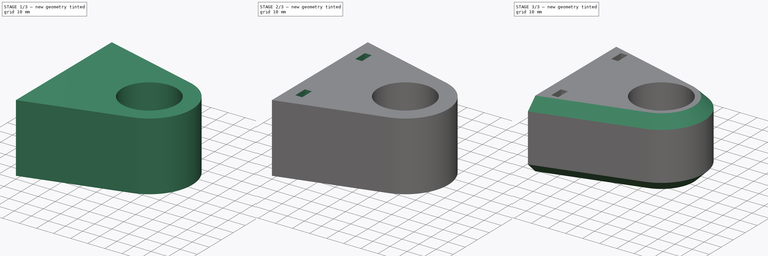
[diagram: build sequence overview — one tinted view per stage of 3, left to right]
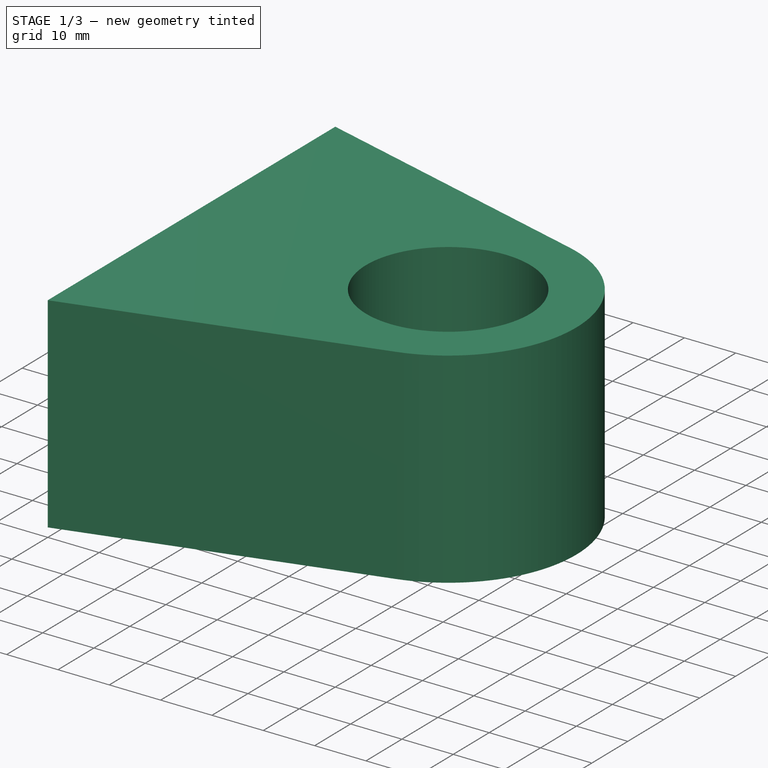
[diagram: stage 1 of 3 — iso view after this stage's code; geometry added in this stage tinted green]
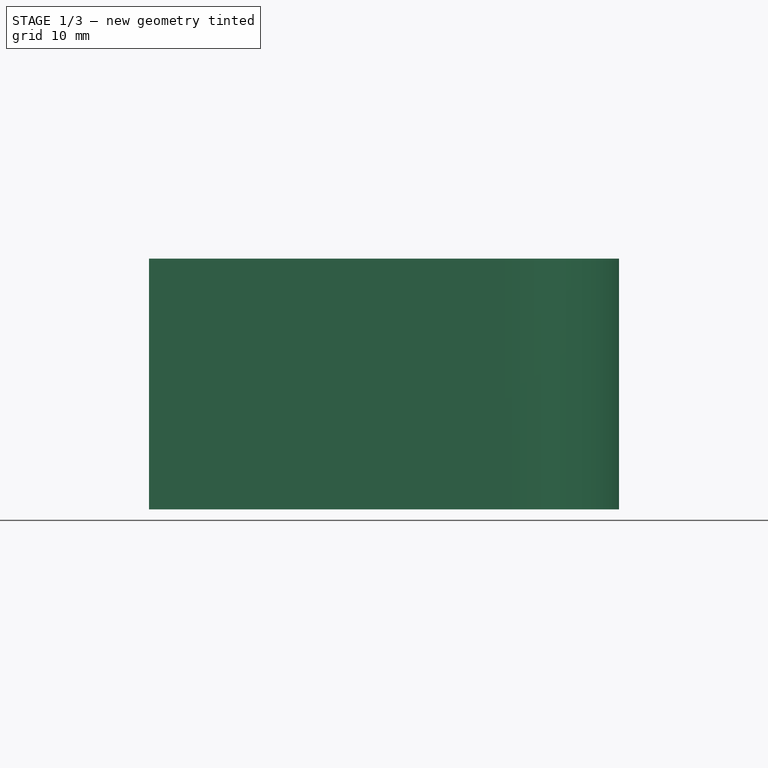
[diagram: stage 1 of 3 — front view after this stage's code; geometry added in this stage tinted green]
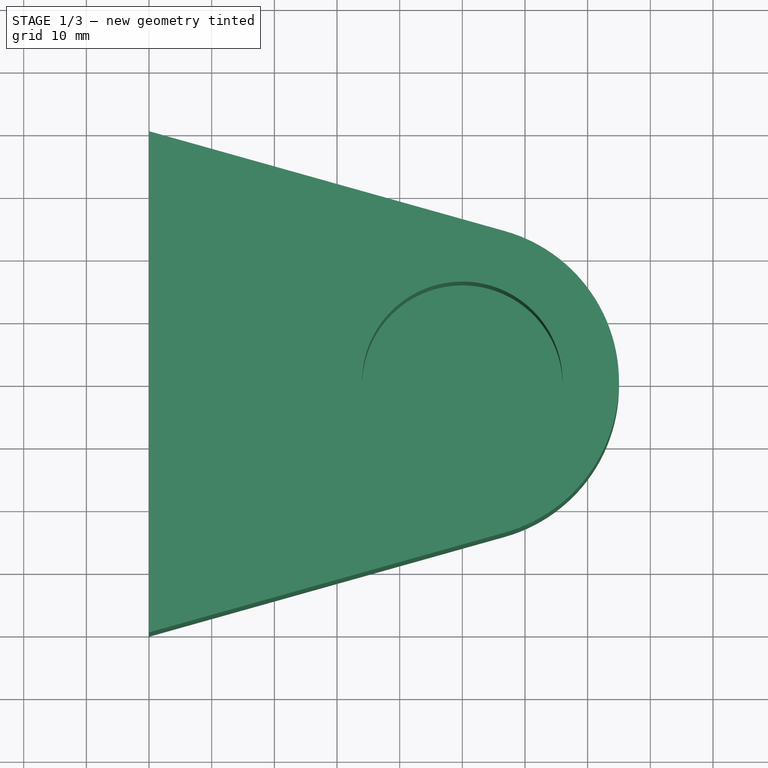
[diagram: stage 1 of 3 — top view after this stage's code; geometry added in this stage tinted green]
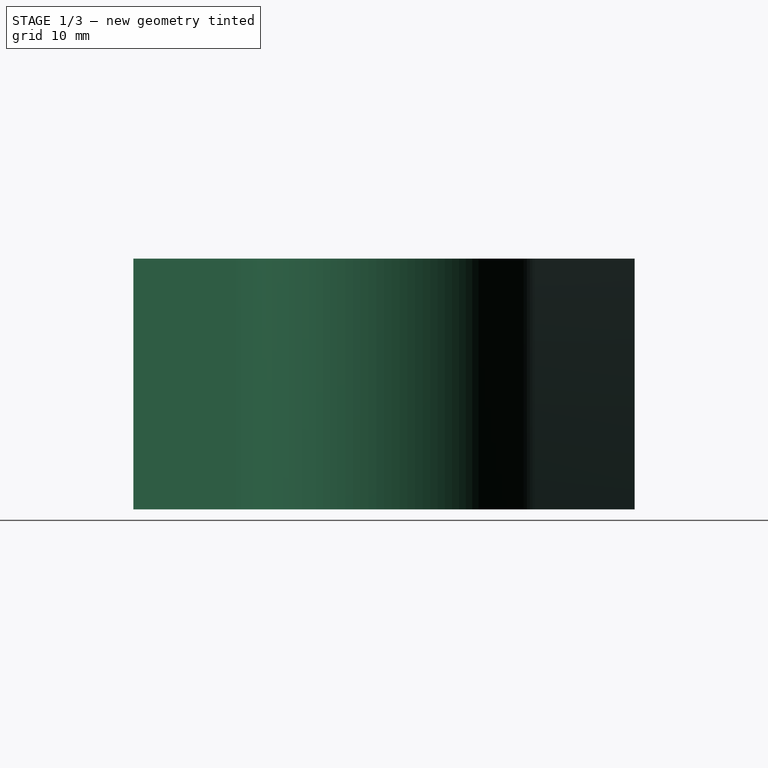
[diagram: stage 1 of 3 — right view after this stage's code; geometry added in this stage tinted green]
FCSTD DOCUMENT  (FreeCAD 0.19R23141 (Git))
Label: monitor_arm_wall_mount
License: All rights reserved
LicenseURL: http://en.wikipedia.org/wiki/All_rights_reserved
objects: Sketcher::SketchObject×4, PartDesign::Pocket×3, PartDesign::Pad×1, PartDesign::Chamfer×1, PartDesign::Body×1
note: 15 computed .brp shape members not serialized (recipe doc carries the construction recipe); baked Part::Feature solids carry a one-line shape summary decoded from their .brp

FEATURE [Sketcher::SketchObject] Sketch
  MapMode = 5
  Support = -> [XY_Plane]
  sketch-geometry (7):
    g0: Circle [constr] CenterX=0 CenterY=0 CenterZ=0 NormalX=0 NormalY=0 NormalZ=1 AngleXU=0 Radius=16
    g1: LineSegment StartX=-50 StartY=40 StartZ=0 EndX=6.75589 EndY=24.0699 EndZ=0
    g2: LineSegment StartX=6.75589 StartY=-24.0699 StartZ=0 EndX=-50 EndY=-40 EndZ=0
    g3: ArcOfCircle CenterX=0 CenterY=0 CenterZ=0 NormalX=0 NormalY=0 NormalZ=1 AngleXU=0 Radius=25 StartAngle=4.98603 EndAngle=7.58034
    g4: LineSegment [constr] StartX=-50 StartY=40 StartZ=0 EndX=-50 EndY=0 EndZ=0
    g5: LineSegment [constr] StartX=-50 StartY=0 StartZ=0 EndX=-50 EndY=-40 EndZ=0
    g6: LineSegment StartX=-50 StartY=40 StartZ=0 EndX=-50 EndY=-40 EndZ=0
  constraints (17):
    c: Coincident(g0,g-1)
    c: Tangent(g2,g3) = 1.5708
    c: Tangent(g1,g3) = 1.5708
    c: Coincident(g3,g0)
    c: Diameter(g0) = 32
    c: Diameter(g3) = 50
    c: DistanceX(g1,g0) = 50
    c: Coincident(g1,g4)
    c: PointOnObject(g4,g-1)
    c: Coincident(g4,g5)
    c: Coincident(g5,g2)
    c: Vertical(g5)
    c: Vertical(g4)
    c: Equal(g4,g5)
    c: DistanceY(g2,g1) = 80
    c: Coincident(g6,g1)
    c: Coincident(g6,g2)
FEATURE [PartDesign::Pad] Pad
  Direction = (1,1,1)
  Length = 40
  Length2 = 100
  Profile = -> Sketch
  Type = 0
FEATURE [Sketcher::SketchObject] Sketch001
  MapMode = 5
  Placement = pos=(0,0,40) rot=(0,0,1;0rad)
  Support = -> [Pad]
  sketch-geometry (1):
    g0: Circle CenterX=0 CenterY=0 CenterZ=0 NormalX=0 NormalY=0 NormalZ=1 AngleXU=0 Radius=16
  constraints (2):
    c: Coincident(g0,g-1)
    c: Diameter(g0) = 32
FEATURE [PartDesign::Pocket] Pocket
  BaseFeature = -> Pad
  Length = 35
  Length2 = 100
  Profile = -> Sketch001
  Type = 0
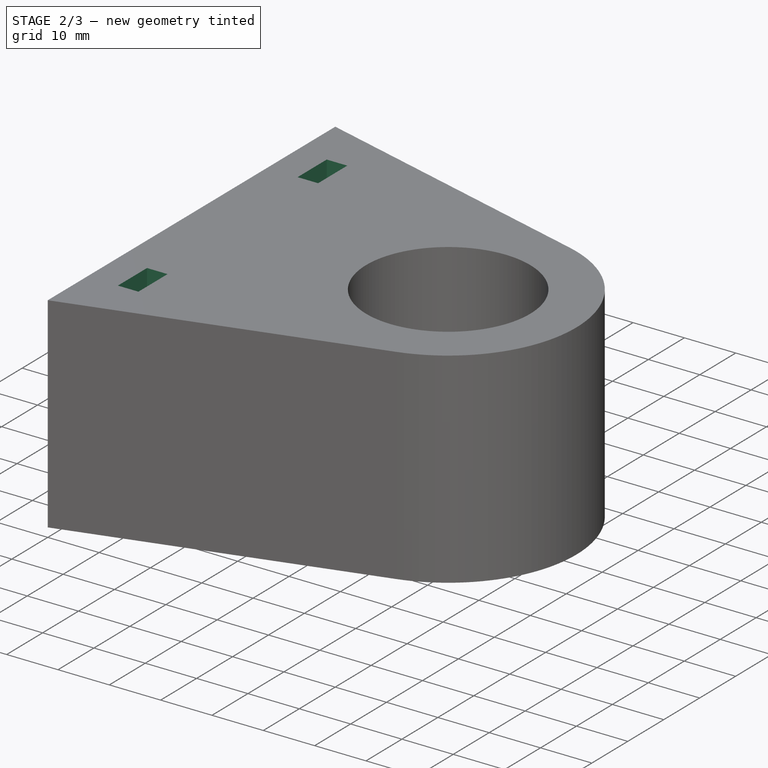
[diagram: stage 2 of 3 — iso view after this stage's code; geometry added in this stage tinted green]
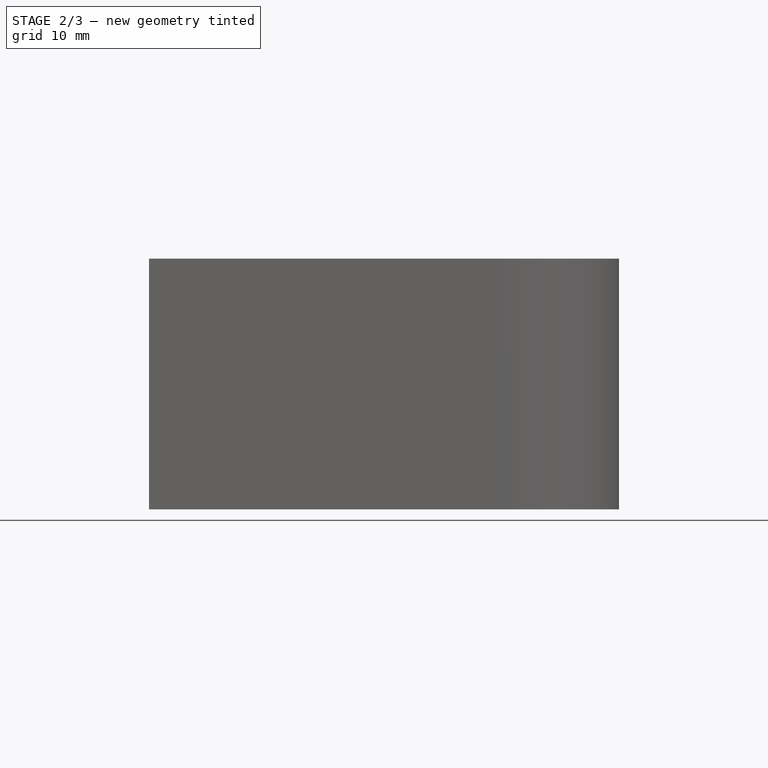
[diagram: stage 2 of 3 — front view after this stage's code; geometry added in this stage tinted green]
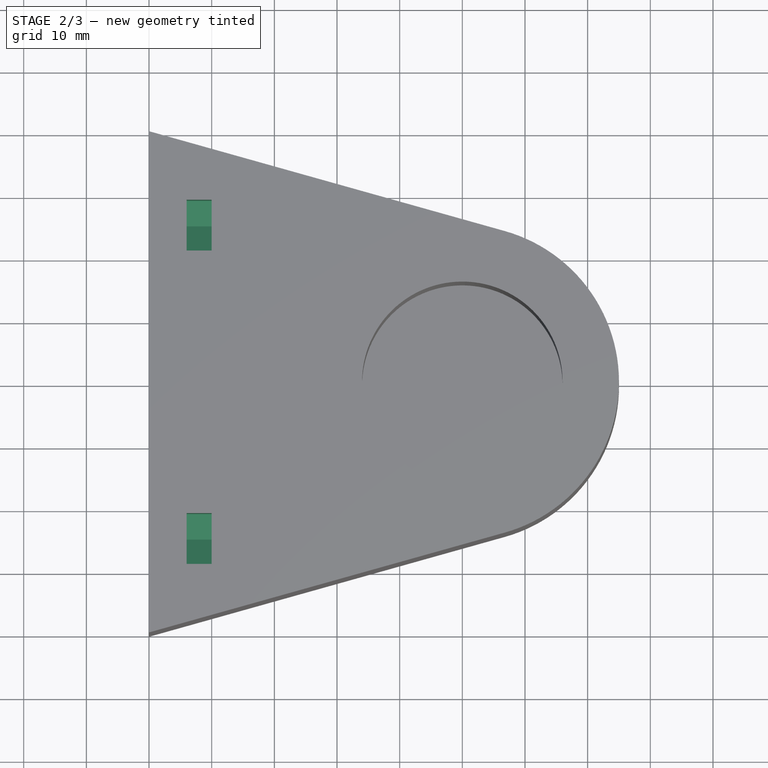
[diagram: stage 2 of 3 — top view after this stage's code; geometry added in this stage tinted green]
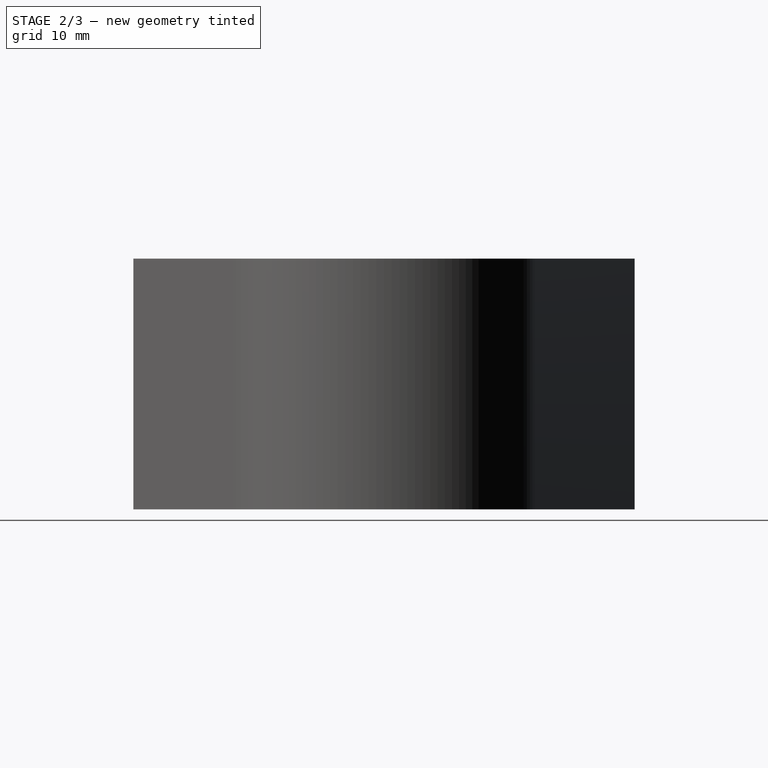
[diagram: stage 2 of 3 — right view after this stage's code; geometry added in this stage tinted green]
FEATURE [Sketcher::SketchObject] Sketch002
  AttachmentOffset = pos=(0,0,-6) rot=(0,0,1;0rad)
  MapMode = 5
  Placement = pos=(-44,0,0) rot=(0.57735,-0.57735,-0.57735;2.0944rad)
  Support = -> [Pocket]
  sketch-geometry (54):
    g0: LineSegment [constr] StartX=-25 StartY=34 StartZ=0 EndX=25 EndY=34 EndZ=0
    g1: LineSegment [constr] StartX=25 StartY=34 StartZ=0 EndX=25 EndY=6 EndZ=0
    g2: LineSegment [constr] StartX=25 StartY=6 StartZ=0 EndX=-25 EndY=6 EndZ=0
    g3: LineSegment [constr] StartX=-25 StartY=6 StartZ=0 EndX=-25 EndY=34 EndZ=0
    g4: LineSegment [constr] StartX=-25 StartY=29.3235 StartZ=0 EndX=-20.95 EndY=31.6617 EndZ=0
    g5: LineSegment [constr] StartX=-20.95 StartY=31.6617 StartZ=0 EndX=-20.95 EndY=36.3383 EndZ=0
    g6: LineSegment [constr] StartX=-20.95 StartY=36.3383 StartZ=0 EndX=-25 EndY=38.6765 EndZ=0
    g7: LineSegment [constr] StartX=-25 StartY=38.6765 StartZ=0 EndX=-29.05 EndY=36.3383 EndZ=0
    g8: LineSegment [constr] StartX=-29.05 StartY=36.3383 StartZ=0 EndX=-29.05 EndY=31.6617 EndZ=0
    g9: LineSegment [constr] StartX=-29.05 StartY=31.6617 StartZ=0 EndX=-25 EndY=29.3235 EndZ=0
    g10: Circle [constr] CenterX=-25 CenterY=34 CenterZ=0 NormalX=0 NormalY=0 NormalZ=1 AngleXU=0 Radius=4.67654
    g11: LineSegment [constr] StartX=25 StartY=29.3235 StartZ=0 EndX=29.05 EndY=31.6617 EndZ=0
    g12: LineSegment [constr] StartX=29.05 StartY=31.6617 StartZ=0 EndX=29.05 EndY=36.3383 EndZ=0
    g13: LineSegment [constr] StartX=29.05 StartY=36.3383 StartZ=0 EndX=25 EndY=38.6765 EndZ=0
    g14: LineSegment [constr] StartX=25 StartY=38.6765 StartZ=0 EndX=20.95 EndY=36.3383 EndZ=0
    g15: LineSegment [constr] StartX=20.95 StartY=36.3383 StartZ=0 EndX=20.95 EndY=31.6617 EndZ=0
    g16: LineSegment [constr] StartX=20.95 StartY=31.6617 StartZ=0 EndX=25 EndY=29.3235 EndZ=0
    g17: Circle [constr] CenterX=25 CenterY=34 CenterZ=0 NormalX=0 NormalY=0 NormalZ=1 AngleXU=0 Radius=4.67654
    g18: LineSegment [constr] StartX=25 StartY=10.6765 StartZ=0 EndX=20.95 EndY=8.33827 EndZ=0
    g19: LineSegment [constr] StartX=20.95 StartY=8.33827 StartZ=0 EndX=20.95 EndY=3.66173 EndZ=0
    g20: LineSegment [constr] StartX=20.95 StartY=3.66173 StartZ=0 EndX=25 EndY=1.32346 EndZ=0
    g21: LineSegment [constr] StartX=25 StartY=1.32346 StartZ=0 EndX=29.05 EndY=3.66173 EndZ=0
    g22: LineSegment [constr] StartX=29.05 StartY=3.66173 StartZ=0 EndX=29.05 EndY=8.33827 EndZ=0
    g23: LineSegment [constr] StartX=29.05 StartY=8.33827 StartZ=0 EndX=25 EndY=10.6765 EndZ=0
    g24: Circle [constr] CenterX=25 CenterY=6 CenterZ=0 NormalX=0 NormalY=0 NormalZ=1 AngleXU=0 Radius=4.67654
    g25: LineSegment [constr] StartX=-25 StartY=10.6765 StartZ=0 EndX=-29.05 EndY=8.33827 EndZ=0
    g26: LineSegment [constr] StartX=-29.05 StartY=8.33827 StartZ=0 EndX=-29.05 EndY=3.66173 EndZ=0
    g27: LineSegment [constr] StartX=-29.05 StartY=3.66173 StartZ=0 EndX=-25 EndY=1.32346 EndZ=0
    g28: LineSegment [constr] StartX=-25 StartY=1.32346 StartZ=0 EndX=-20.95 EndY=3.66173 EndZ=0
    g29: LineSegment [constr] StartX=-20.95 StartY=3.66173 StartZ=0 EndX=-20.95 EndY=8.33827 EndZ=0
    g30: LineSegment [constr] StartX=-20.95 StartY=8.33827 StartZ=0 EndX=-25 EndY=10.6765 EndZ=0
    g31: Circle [constr] CenterX=-25 CenterY=6 CenterZ=0 NormalX=0 NormalY=0 NormalZ=1 AngleXU=0 Radius=4.67654
    g32: LineSegment [constr] StartX=0 StartY=0 StartZ=0 EndX=-25 EndY=34 EndZ=0
    g33: LineSegment [constr] StartX=0 StartY=0 StartZ=0 EndX=25 EndY=34 EndZ=0
    g34: LineSegment StartX=-29.05 StartY=31.6617 StartZ=0 EndX=-25 EndY=29.3235 EndZ=0
    g35: LineSegment StartX=-25 StartY=29.3235 StartZ=0 EndX=-20.95 EndY=31.6617 EndZ=0
    g36: LineSegment StartX=-20.95 StartY=31.6617 StartZ=0 EndX=-20.95 EndY=51.6617 EndZ=0
    g37: LineSegment StartX=-20.95 StartY=51.6617 StartZ=0 EndX=-29.05 EndY=51.6617 EndZ=0
    g38: LineSegment StartX=-29.05 StartY=51.6617 StartZ=0 EndX=-29.05 EndY=31.6617 EndZ=0
    g39: LineSegment StartX=25 StartY=29.3235 StartZ=0 EndX=20.95 EndY=31.6617 EndZ=0
    g40: LineSegment StartX=20.95 StartY=31.6617 StartZ=0 EndX=20.95 EndY=51.6617 EndZ=0
    g41: LineSegment StartX=20.95 StartY=51.6617 StartZ=0 EndX=29.05 EndY=51.6617 EndZ=0
    g42: LineSegment StartX=29.05 StartY=51.6617 StartZ=0 EndX=29.05 EndY=31.6617 EndZ=0
    g43: LineSegment StartX=29.05 StartY=31.6617 StartZ=0 EndX=25 EndY=29.3235 EndZ=0
    g44: LineSegment StartX=-29.05 StartY=8.33827 StartZ=0 EndX=-25 EndY=10.6765 EndZ=0
    g45: LineSegment StartX=-25 StartY=10.6765 StartZ=0 EndX=-20.95 EndY=8.33827 EndZ=0
    g46: LineSegment StartX=-20.95 StartY=8.33827 StartZ=0 EndX=-20.95 EndY=-11.6617 EndZ=0
    g47: LineSegment StartX=-20.95 StartY=-11.6617 StartZ=0 EndX=-29.05 EndY=-11.6617 EndZ=0
    g48: LineSegment StartX=-29.05 StartY=-11.6617 StartZ=0 EndX=-29.05 EndY=8.33827 EndZ=0
    g49: LineSegment StartX=20.95 StartY=8.33827 StartZ=0 EndX=25 EndY=10.6765 EndZ=0
    g50: LineSegment StartX=25 StartY=10.6765 StartZ=0 EndX=29.05 EndY=8.33827 EndZ=0
    g51: LineSegment StartX=29.05 StartY=8.33827 StartZ=0 EndX=29.05 EndY=-11.6617 EndZ=0
    g52: LineSegment StartX=29.05 StartY=-11.6617 StartZ=0 EndX=20.95 EndY=-11.6617 EndZ=0
    g53: LineSegment StartX=20.95 StartY=-11.6617 StartZ=0 EndX=20.95 EndY=8.33827 EndZ=0
  constraints (128):
    c: Coincident(g0,g1)
    c: Coincident(g1,g2)
    c: Coincident(g2,g3)
    c: Coincident(g3,g0)
    c: Horizontal(g0)
    c: Horizontal(g2)
    c: Vertical(g1)
    c: Vertical(g3)
    c: Coincident(g4,g5)
    c: Coincident(g5,g6)
    c: Coincident(g6,g7)
    c: Coincident(g7,g8)
    c: Coincident(g8,g9)
    c: Coincident(g9,g4)
    c: Equal(g4, g5-g9) x5
    c: PointOnObject(g4,g10)
    c: PointOnObject(g5,g10)
    c: PointOnObject(g6,g10)
    c: PointOnObject(g7,g10)
    c: PointOnObject(g8,g10)
    c: PointOnObject(g9,g10)
    c: Coincident(g10,g0)
    c: Coincident(g11,g12)
    c: Coincident(g12,g13)
    c: Coincident(g13,g14)
    c: Coincident(g14,g15)
    c: Coincident(g15,g16)
    c: Coincident(g16,g11)
    c: Equal(g11, g12-g16) x5
    c: PointOnObject(g11,g17)
    c: PointOnObject(g12,g17)
    c: PointOnObject(g13,g17)
    c: PointOnObject(g14,g17)
    c: PointOnObject(g15,g17)
    c: PointOnObject(g16,g17)
    c: Coincident(g17,g0)
    c: PointOnObject(g16,g1)
    c: Coincident(g18,g19)
    c: Coincident(g19,g20)
    c: Coincident(g20,g21)
    c: Coincident(g21,g22)
    c: Coincident(g22,g23)
    c: Coincident(g23,g18)
    c: Equal(g18, g19-g23) x5
    c: PointOnObject(g18,g24)
    c: PointOnObject(g19,g24)
    c: PointOnObject(g20,g24)
    c: PointOnObject(g21,g24)
    c: PointOnObject(g22,g24)
    c: PointOnObject(g23,g24)
    c: Coincident(g24,g1)
    c: PointOnObject(g23,g1)
    c: Coincident(g25,g26)
    c: Coincident(g26,g27)
    c: Coincident(g27,g28)
    c: Coincident(g28,g29)
    c: Coincident(g29,g30)
    c: Coincident(g30,g25)
    c: Equal(g25, g26-g30) x5
    c: PointOnObject(g25,g31)
    c: PointOnObject(g26,g31)
    c: PointOnObject(g27,g31)
    c: PointOnObject(g28,g31)
    c: PointOnObject(g29,g31)
    c: PointOnObject(g30,g31)
    c: Coincident(g31,g2)
    c: PointOnObject(g30,g3)
    c: PointOnObject(g4,g3)
    c: Equal(g6,g13)
    c: Equal(g13,g23)
    c: Equal(g23,g30)
    c: DistanceX(g7,g5) = 8.1
    c: DistanceY(g3,g3) = 28
    c: DistanceX(g0,g0) = 50
    c: Coincident(g32,g-1)
    c: Coincident(g32,g0)
    c: Coincident(g33,g-1)
    c: Coincident(g33,g0)
    c: Equal(g33,g32)
    c: DistanceY(g-1,g1) = 6
    c: Coincident(g8,g34)
    c: Coincident(g34,g4)
    c: Coincident(g34,g35)
    c: Coincident(g35,g4)
    c: Coincident(g35,g36)
    c: Vertical(g36)
    c: Coincident(g36,g37)
    c: Horizontal(g37)
    c: Coincident(g37,g38)
    c: Coincident(g38,g34)
    c: Vertical(g38)
    c: Coincident(g11,g39)
    c: Coincident(g39,g15)
    c: Coincident(g39,g40)
    c: Vertical(g40)
    c: Coincident(g40,g41)
    c: Coincident(g41,g42)
    c: Coincident(g42,g11)
    c: Vertical(g42)
    c: Coincident(g42,g43)
    c: Coincident(g43,g39)
    c: Horizontal(g41)
    c: Coincident(g25,g44)
    c: Coincident(g44,g25)
    c: Coincident(g44,g45)
    c: Coincident(g45,g29)
    c: Coincident(g45,g46)
    c: Vertical(g46)
    c: Coincident(g46,g47)
    c: Horizontal(g47)
    c: Coincident(g47,g48)
    c: Coincident(g48,g44)
    c: Vertical(g48)
    c: Coincident(g18,g49)
    c: Coincident(g49,g18)
    c: Coincident(g49,g50)
    c: Coincident(g50,g22)
    c: Coincident(g50,g51)
    c: Vertical(g51)
    c: Coincident(g51,g52)
    c: Horizontal(g52)
    c: Coincident(g52,g53)
    c: Coincident(g53,g49)
    c: Vertical(g53)
    c: Equal(g42,g38)
    c: Equal(g38,g48)
    c: Equal(g48,g51)
    c: DistanceY(g48,g48) = 20
FEATURE [PartDesign::Pocket] Pocket001
  BaseFeature = -> Pocket
  Length = 4
  Length2 = 100
  Profile = -> Sketch002
  Type = 0
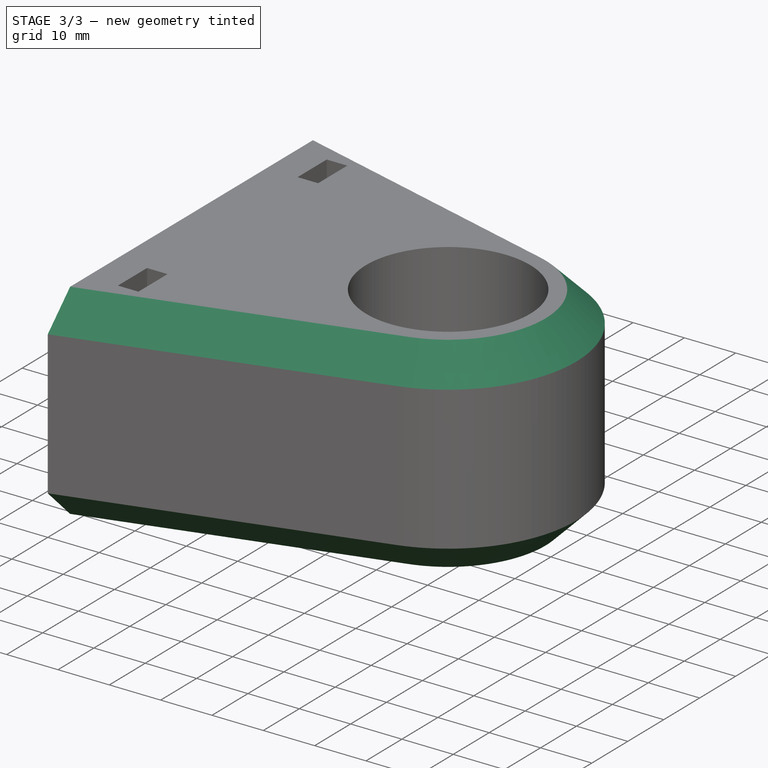
[diagram: stage 3 of 3 — iso view after this stage's code; geometry added in this stage tinted green]
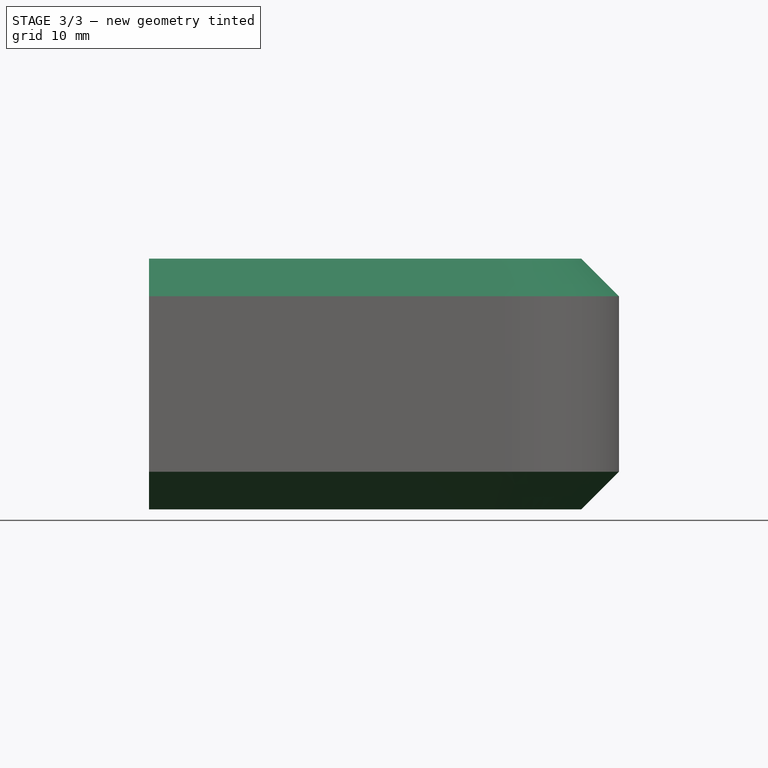
[diagram: stage 3 of 3 — front view after this stage's code; geometry added in this stage tinted green]
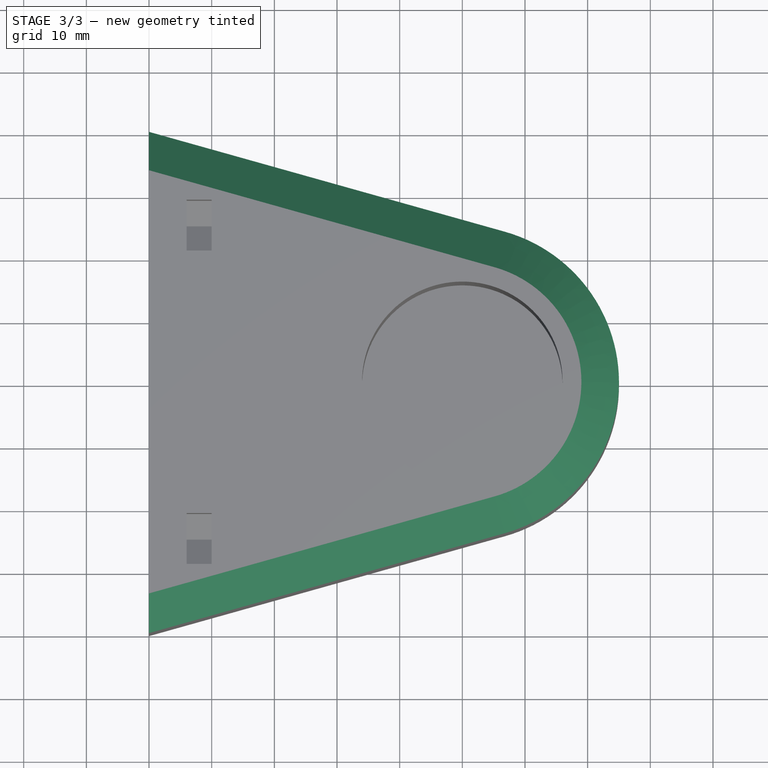
[diagram: stage 3 of 3 — top view after this stage's code; geometry added in this stage tinted green]
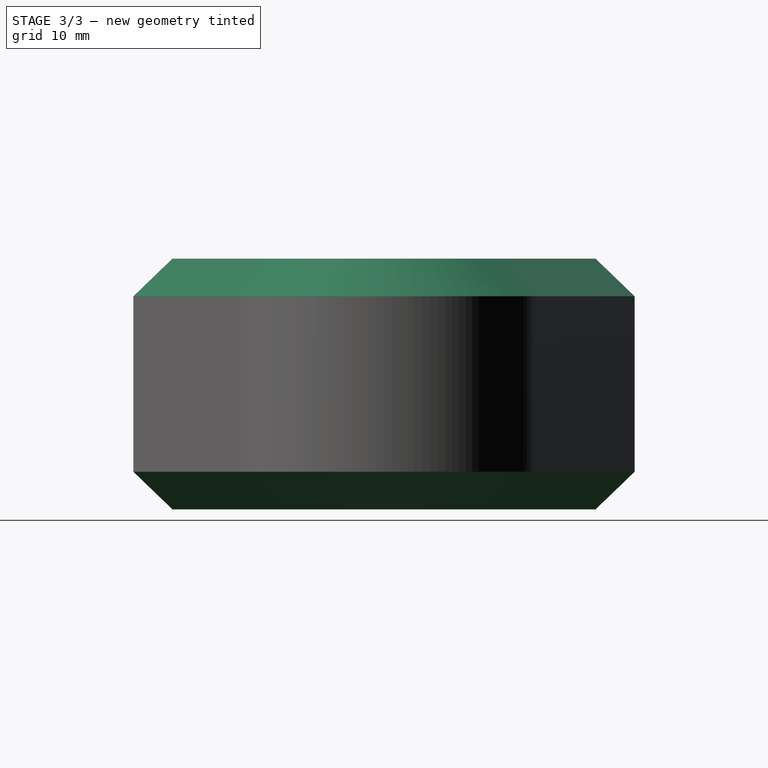
[diagram: stage 3 of 3 — right view after this stage's code; geometry added in this stage tinted green]
FEATURE [Sketcher::SketchObject] Sketch003
  MapMode = 5
  Placement = pos=(-50,0,0) rot=(0.57735,-0.57735,-0.57735;2.0944rad)
  Support = -> [Pocket001]
  sketch-geometry (10):
    g0: LineSegment [constr] StartX=25 StartY=34 StartZ=0 EndX=25 EndY=6 EndZ=0
    g1: LineSegment [constr] StartX=25 StartY=6 StartZ=0 EndX=-25 EndY=6 EndZ=0
    g2: LineSegment [constr] StartX=0 StartY=0 StartZ=0 EndX=25 EndY=34 EndZ=0
    g3: Circle CenterX=25 CenterY=34 CenterZ=0 NormalX=0 NormalY=0 NormalZ=1 AngleXU=0 Radius=2.6
    g4: Circle CenterX=-25 CenterY=6 CenterZ=0 NormalX=0 NormalY=0 NormalZ=1 AngleXU=0 Radius=2.6
    g5: Circle CenterX=25 CenterY=6 CenterZ=0 NormalX=0 NormalY=0 NormalZ=1 AngleXU=0 Radius=2.6
    g6: Circle CenterX=-25 CenterY=34 CenterZ=0 NormalX=0 NormalY=0 NormalZ=1 AngleXU=0 Radius=2.6
    g7: LineSegment [constr] StartX=-25 StartY=6 StartZ=0 EndX=-25 EndY=34 EndZ=0
    g8: LineSegment [constr] StartX=-25 StartY=34 StartZ=0 EndX=25 EndY=34 EndZ=0
    g9: LineSegment [constr] StartX=-25 StartY=34 StartZ=0 EndX=0 EndY=0 EndZ=0
  constraints (24):
    c: Coincident(g0,g1)
    c: Horizontal(g1)
    c: Vertical(g0)
    c: DistanceY(g-1,g1) = 6
    c: Coincident(g2,g-1)
    c: Coincident(g4,g1)
    c: Coincident(g5,g0)
    c: Diameter(g5) = 5.2
    c: Equal(g5,g3)
    c: Equal(g5,g4)
    c: Equal(g6,g3)
    c: Coincident(g7,g4)
    c: Coincident(g7,g6)
    c: Coincident(g7,g8)
    c: Coincident(g8,g3)
    c: Horizontal(g8)
    c: Coincident(g0,g3)
    c: Vertical(g7)
    c: DistanceY(g7,g7) = 28
    c: DistanceX(g8,g8) = 50
    c: Coincident(g9,g6)
    c: Coincident(g9,g-1)
    c: Equal(g2,g9)
    c: Coincident(g2,g3)
FEATURE [PartDesign::Pocket] Pocket002
  BaseFeature = -> Pocket001
  Length = 30
  Length2 = 100
  Profile = -> Sketch003
  Type = 0
FEATURE [PartDesign::Chamfer] Chamfer
  Angle = 45
  Base = -> Pocket002 [Edge24,Edge15]
  BaseFeature = -> Pocket002
  ChamferType = 0
  FlipDirection = false
  Size = 6
  Size2 = 1
  SupportTransform = false
FEATURE [PartDesign::Body] Body
  Group = -> [Sketch,Pad,Sketch001,Pocket,Sketch002,Pocket001,Sketch003,Pocket002,Chamfer]
  Origin = -> Origin
  Tip = -> Chamfer
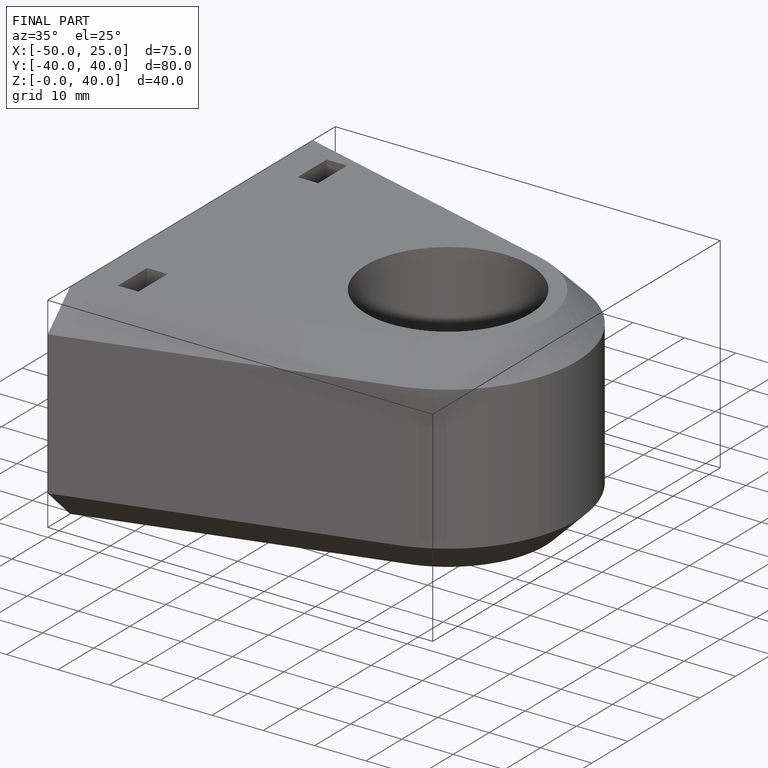
[diagram: finished part — iso view with bounding-box wireframe]
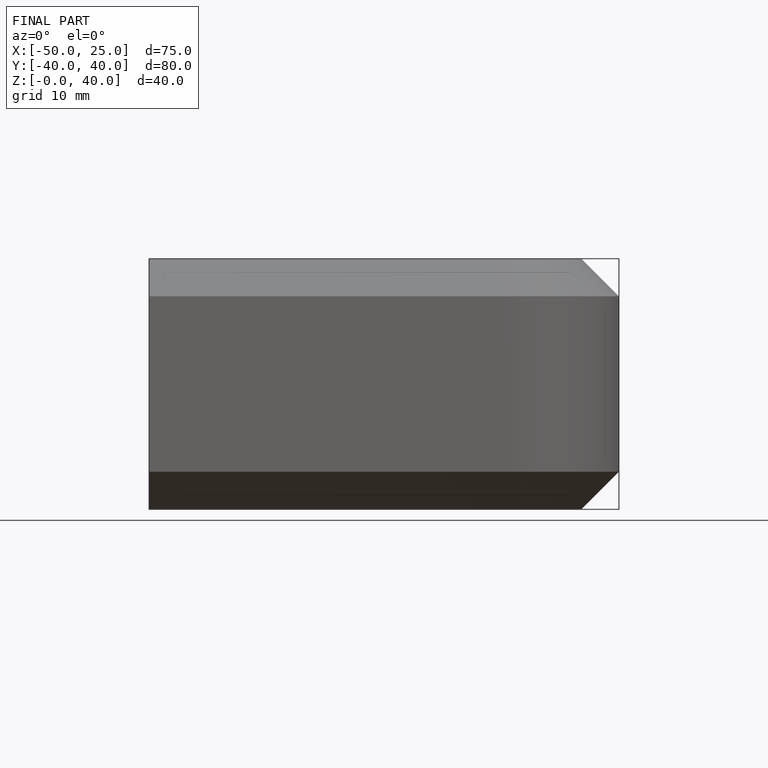
[diagram: finished part — front view with bounding-box wireframe]
